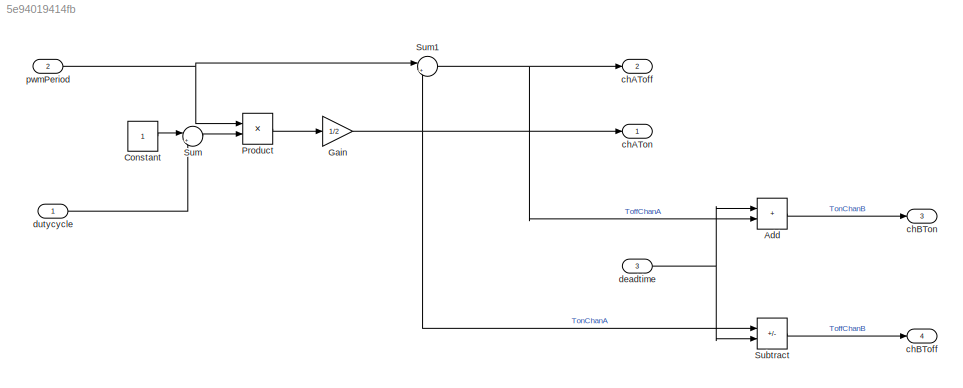
MODEL slx_5e94019414fb
KIND model
CONFIG AbsTol = auto
CONFIG EnableMultiTasking = off
CONFIG FixedStep = auto
CONFIG MaxStep = auto
CONFIG MinStep = auto
CONFIG RelTol = 1e-3
CONFIG SampleTimeConstraint = Unconstrained
CONFIG SolverName = FixedStepAuto
CONFIG StartTime = 0.0
CONFIG StopTime = 10.0
BLOCK [Sum] Add
  IconShape = rectangular
  Ports = [2, 1]
BLOCK [Constant] Constant
BLOCK [Gain] Gain
  Gain = 1/2
BLOCK [Product] Product
  Ports = [2, 1]
BLOCK [Sum] Subtract
  IconShape = rectangular
  Inputs = +-
  Ports = [2, 1]
BLOCK [Sum] Sum
  Inputs = |+-
  Ports = [2, 1]
BLOCK [Sum] Sum1
  Inputs = |+-
  Ports = [2, 1]
BLOCK [Outport] chAToff
  Port = 2
  PortDimensions = 3
BLOCK [Outport] chATon
  PortDimensions = 3
BLOCK [Outport] chBToff
  Port = 4
  PortDimensions = 3
BLOCK [Outport] chBTon
  Port = 3
  PortDimensions = 3
BLOCK [Inport] deadtime
  Port = 3
BLOCK [Inport] dutycycle
  PortDimensions = 3
BLOCK [Inport] pwmPeriod
  Port = 2
LINE Add:1 -> chBTon:1
LINE Constant:1 -> Sum:1
NET Gain:1 -> Subtract:1, Sum1:2, chATon:1
LINE Product:1 -> Gain:1
LINE Subtract:1 -> chBToff:1
NET Sum1:1 -> Add:2, chAToff:1
LINE Sum:1 -> Product:2
NET deadtime:1 -> Add:1, Subtract:2
LINE dutycycle:1 -> Sum:2
NET pwmPeriod:1 -> Product:1, Sum1:1
note: NET lines group one-source signal fan-out (src -> all destinations, sorted); 1:1 wires keep LINE
